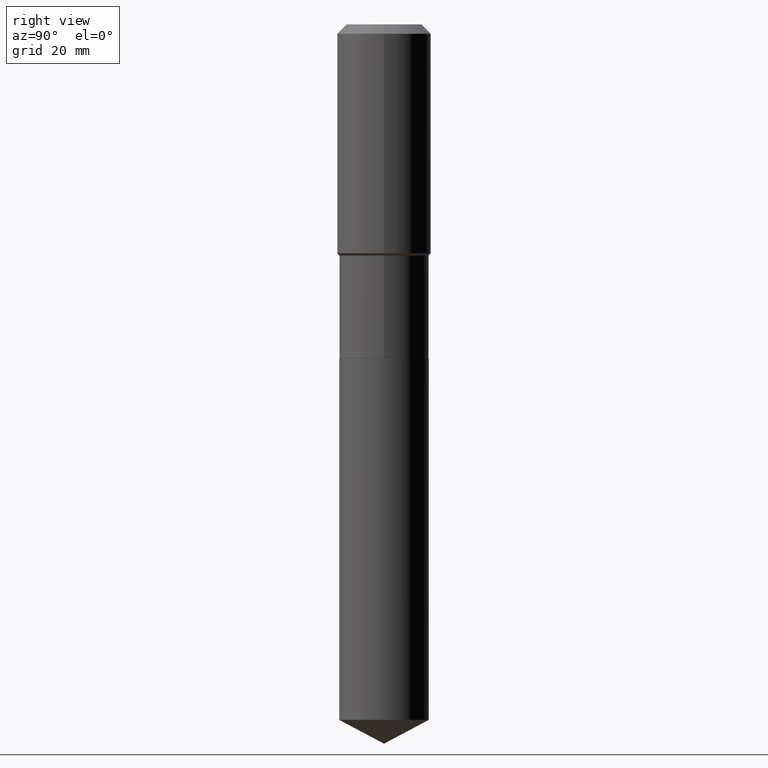
[diagram: clean part render]
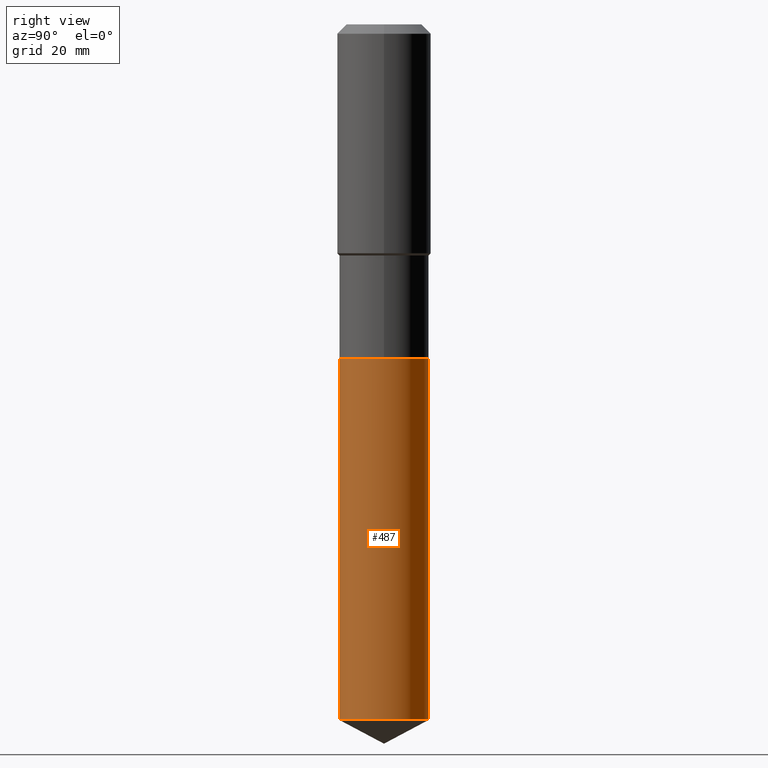
[diagram: same view with one face highlighted and labeled with its STEP entity id]
A machine part, right view. The second image highlights one B-rep face of the part: STEP entity #487.
In plain terms, the highlighted cylindrical surface (partial cylindrical patch) has radius 9.525 mm, axis along (-0, 0, 1).
Its self-contained STEP definition (entity closure, byte-faithful):
#6 = DIRECTION ( 'NONE',  ( -6.982962677686265922E-15, -1.000000000000000000, 2.913971193241880372E-15 ) ) ;
#7 = CYLINDRICAL_SURFACE ( 'NONE', #246, 0.3750000000000000555 ) ;
#43 = LINE ( 'NONE', #198, #277 ) ;
#47 = LINE ( 'NONE', #456, #237 ) ;
#49 = EDGE_CURVE ( 'NONE', #474, #155, #47, .T. ) ;
#133 = FACE_OUTER_BOUND ( 'NONE', #214, .T. ) ;
#149 = CARTESIAN_POINT ( 'NONE',  ( 2.664535259100518086E-15, 0.3749999999999796829, -5.824608963126946648 ) ) ;
#155 = VERTEX_POINT ( 'NONE', #327 ) ;
#178 = EDGE_CURVE ( 'NONE', #242, #202, #43, .T. ) ;
#182 = AXIS2_PLACEMENT_3D ( 'NONE', #343, #385, #6 ) ;
#198 = CARTESIAN_POINT ( 'NONE',  ( -2.618611004132281780E-15, -0.3750000000000097700, -2.797999999999999154 ) ) ;
#202 = VERTEX_POINT ( 'NONE', #326 ) ;
#207 = ORIENTED_EDGE ( 'NONE', *, *, #378, .T. ) ;
#214 = EDGE_LOOP ( 'NONE', ( #207, #251, #332, #339 ) ) ;
#216 = DIRECTION ( 'NONE',  ( -2.445835292823377715E-29, 3.490956509118059886E-15, 1.000000000000000000 ) ) ;
#227 = CIRCLE ( 'NONE', #483, 0.3750000000000000555 ) ;
#237 = VECTOR ( 'NONE', #416, 39.37007874015748143 ) ;
#242 = VERTEX_POINT ( 'NONE', #282 ) ;
#246 = AXIS2_PLACEMENT_3D ( 'NONE', #388, #272, #316 ) ;
#251 = ORIENTED_EDGE ( 'NONE', *, *, #49, .T. ) ;
#272 = DIRECTION ( 'NONE',  ( -2.445835292823377995E-29, 3.490956509118059886E-15, 1.000000000000000000 ) ) ;
#273 = DIRECTION ( 'NONE',  ( -2.445835292823377995E-29, 3.490956509118059886E-15, 1.000000000000000000 ) ) ;
#277 = VECTOR ( 'NONE', #216, 39.37007874015748143 ) ;
#282 = CARTESIAN_POINT ( 'NONE',  ( -2.618611004132207233E-15, -0.3750000000000203726, -5.824608963126944872 ) ) ;
#311 = DIRECTION ( 'NONE',  ( -6.982962677686265922E-15, -1.000000000000000000, 2.913971193241880372E-15 ) ) ;
#316 = DIRECTION ( 'NONE',  ( -6.982962677686265922E-15, -1.000000000000000000, 2.913971193241880372E-15 ) ) ;
#326 = CARTESIAN_POINT ( 'NONE',  ( -2.618611004132281780E-15, -0.3750000000000097700, -2.797999999999999154 ) ) ;
#327 = CARTESIAN_POINT ( 'NONE',  ( 2.664535259100518875E-15, 0.3749999999999902855, -2.798000000000000931 ) ) ;
#332 = ORIENTED_EDGE ( 'NONE', *, *, #473, .F. ) ;
#339 = ORIENTED_EDGE ( 'NONE', *, *, #178, .F. ) ;
#343 = CARTESIAN_POINT ( 'NONE',  ( 6.842421719706012162E-29, -9.769164786083122090E-15, -2.798000000000000043 ) ) ;
#378 = EDGE_CURVE ( 'NONE', #242, #474, #227, .T. ) ;
#385 = DIRECTION ( 'NONE',  ( -2.445835292823377995E-29, 3.490956509118059886E-15, 1.000000000000000000 ) ) ;
#388 = CARTESIAN_POINT ( 'NONE',  ( 6.842421719706012162E-29, -9.769164786083122090E-15, -2.798000000000000043 ) ) ;
#393 = CIRCLE ( 'NONE', #182, 0.3750000000000000555 ) ;
#416 = DIRECTION ( 'NONE',  ( -2.445835292823377715E-29, 3.490956509118059886E-15, 1.000000000000000000 ) ) ;
#417 = CARTESIAN_POINT ( 'NONE',  ( 1.424500873929746689E-28, -2.033492504646619205E-14, -5.824608963126945760 ) ) ;
#456 = CARTESIAN_POINT ( 'NONE',  ( 2.664535259100443933E-15, 0.3749999999999902855, -2.798000000000000931 ) ) ;
#473 = EDGE_CURVE ( 'NONE', #202, #155, #393, .T. ) ;
#474 = VERTEX_POINT ( 'NONE', #149 ) ;
#483 = AXIS2_PLACEMENT_3D ( 'NONE', #417, #273, #311 ) ;
#487 = ADVANCED_FACE ( 'NONE', ( #133 ), #7, .T. ) ;